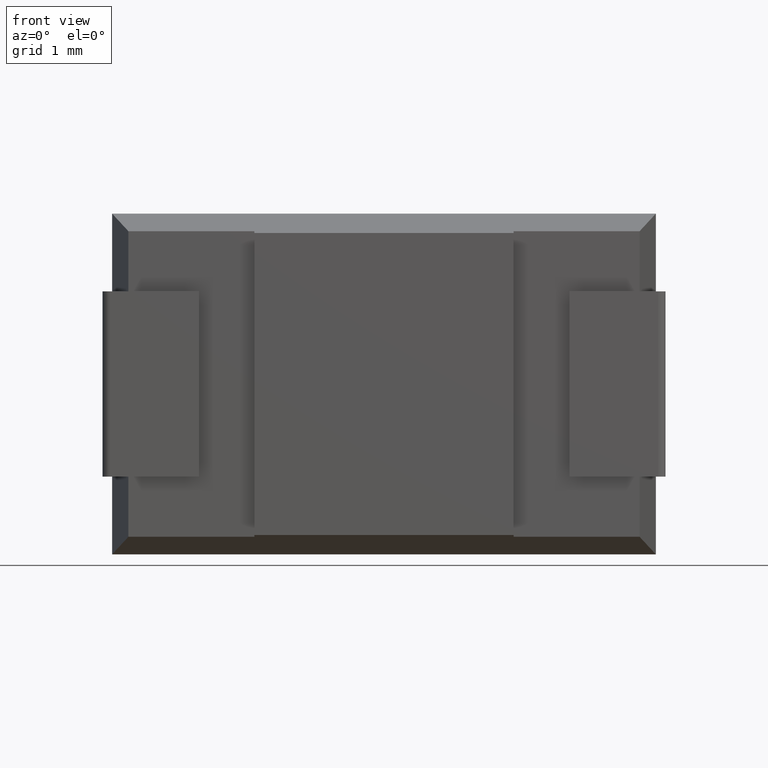
[diagram: clean part render]
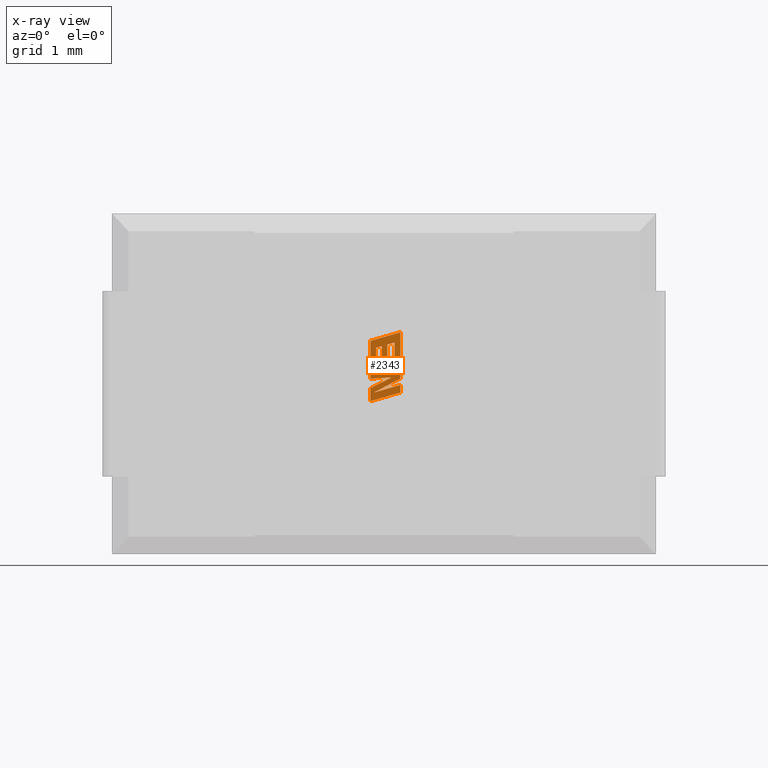
[diagram: x-ray — body ghosted, one internal face saturated and labeled with its STEP entity id]
A machine part, front view, then the same camera in x-ray: the body is ghosted and one INTERNAL B-rep face — a face not visible from any outside direction — is saturated and labeled: STEP entity #2343.
In plain terms, the highlighted planar face has unit normal (0, -1, 0).
Its self-contained STEP definition (entity closure, byte-faithful):
#6 = EDGE_CURVE ( 'NONE', #453, #1820, #2575, .T. ) ;
#65 = CARTESIAN_POINT ( 'NONE',  ( 3.813645201573502952, 4.299999999999999822, -1.739518890328926704 ) ) ;
#77 = LINE ( 'NONE', #2746, #3170 ) ;
#116 = DIRECTION ( 'NONE',  ( -0.9611638845407373122, 0.000000000000000000, -0.2759782365596246678 ) ) ;
#183 = VERTEX_POINT ( 'NONE', #1805 ) ;
#210 = LINE ( 'NONE', #2001, #3717 ) ;
#232 = EDGE_LOOP ( 'NONE', ( #316, #2548, #3337, #493, #2160, #2487, #1313, #1969, #3007, #1887, #494, #2509, #397, #1407, #1789, #3049, #1399, #1050, #2963, #1694, #3016, #686, #283 ) ) ;
#252 = VERTEX_POINT ( 'NONE', #3219 ) ;
#257 = EDGE_CURVE ( 'NONE', #258, #1262, #3804, .T. ) ;
#258 = VERTEX_POINT ( 'NONE', #2652 ) ;
#283 = ORIENTED_EDGE ( 'NONE', *, *, #2168, .F. ) ;
#316 = ORIENTED_EDGE ( 'NONE', *, *, #3020, .F. ) ;
#348 = VERTEX_POINT ( 'NONE', #1433 ) ;
#351 = FACE_OUTER_BOUND ( 'NONE', #232, .T. ) ;
#375 = LINE ( 'NONE', #678, #2811 ) ;
#380 = LINE ( 'NONE', #848, #1875 ) ;
#397 = ORIENTED_EDGE ( 'NONE', *, *, #2608, .F. ) ;
#399 = DIRECTION ( 'NONE',  ( 0.9610029908221288109, 0.000000000000000000, 0.2765379750249924995 ) ) ;
#408 = VERTEX_POINT ( 'NONE', #1008 ) ;
#439 = LINE ( 'NONE', #2809, #3740 ) ;
#450 = EDGE_CURVE ( 'NONE', #252, #3300, #1406, .T. ) ;
#453 = VERTEX_POINT ( 'NONE', #1046 ) ;
#459 = LINE ( 'NONE', #1618, #1266 ) ;
#493 = ORIENTED_EDGE ( 'NONE', *, *, #3226, .F. ) ;
#494 = ORIENTED_EDGE ( 'NONE', *, *, #3787, .F. ) ;
#497 = CARTESIAN_POINT ( 'NONE',  ( 3.713426764250093992, 4.299999999999999822, -1.941120525381216266 ) ) ;
#516 = LINE ( 'NONE', #2878, #2426 ) ;
#529 = VERTEX_POINT ( 'NONE', #3431 ) ;
#560 = CARTESIAN_POINT ( 'NONE',  ( 3.563882562895016815, 4.299999999999999822, -1.811165141901949882 ) ) ;
#591 = DIRECTION ( 'NONE',  ( 0.9984327301129910515, 0.000000000000000000, 0.05596501978127984417 ) ) ;
#614 = EDGE_CURVE ( 'NONE', #1262, #2731, #2436, .T. ) ;
#632 = VECTOR ( 'NONE', #399, 1000.000000000000114 ) ;
#644 = DIRECTION ( 'NONE',  ( -0.9619530280415754531, 0.000000000000000000, -0.2732148821745332135 ) ) ;
#669 = CARTESIAN_POINT ( 'NONE',  ( 3.890359999999998930, 4.299999999999999822, -2.227607446257737323 ) ) ;
#678 = CARTESIAN_POINT ( 'NONE',  ( 3.487129756498003275, 4.299999999999999822, -2.016680371912930259 ) ) ;
#686 = ORIENTED_EDGE ( 'NONE', *, *, #2297, .F. ) ;
#730 = EDGE_CURVE ( 'NONE', #3300, #2599, #210, .T. ) ;
#732 = VECTOR ( 'NONE', #3232, 1000.000000000000114 ) ;
#745 = VECTOR ( 'NONE', #1469, 1000.000000000000000 ) ;
#799 = CARTESIAN_POINT ( 'NONE',  ( 3.713426764250093992, 4.299999999999999822, -1.768073911191687886 ) ) ;
#828 = EDGE_CURVE ( 'NONE', #979, #1463, #1729, .T. ) ;
#848 = CARTESIAN_POINT ( 'NONE',  ( 3.713426764250093992, 4.299999999999999822, -1.941120525381216266 ) ) ;
#854 = EDGE_CURVE ( 'NONE', #1463, #3110, #2567, .T. ) ;
#889 = LINE ( 'NONE', #560, #1622 ) ;
#953 = VECTOR ( 'NONE', #1637, 1000.000000000000000 ) ;
#958 = LINE ( 'NONE', #669, #2559 ) ;
#979 = VERTEX_POINT ( 'NONE', #3607 ) ;
#982 = DIRECTION ( 'NONE',  ( 0.000000000000000000, 0.000000000000000000, -1.000000000000000000 ) ) ;
#1008 = CARTESIAN_POINT ( 'NONE',  ( 3.890359999999998486, 4.299999999999999822, -2.314444625629878516 ) ) ;
#1046 = CARTESIAN_POINT ( 'NONE',  ( 3.890359999999998042, 4.299999999999999822, -2.416911663565799451 ) ) ;
#1050 = ORIENTED_EDGE ( 'NONE', *, *, #1450, .F. ) ;
#1052 = CARTESIAN_POINT ( 'NONE',  ( 3.813645201573502952, 4.299999999999999822, -1.963047446509654570 ) ) ;
#1186 = CARTESIAN_POINT ( 'NONE',  ( 3.487129756498003275, 4.299999999999999822, -2.355989289457152136 ) ) ;
#1195 = VECTOR ( 'NONE', #591, 1000.000000000000114 ) ;
#1223 = VECTOR ( 'NONE', #644, 1000.000000000000000 ) ;
#1262 = VERTEX_POINT ( 'NONE', #1745 ) ;
#1266 = VECTOR ( 'NONE', #116, 1000.000000000000114 ) ;
#1275 = CARTESIAN_POINT ( 'NONE',  ( 3.890359999999999818, 4.299999999999999822, -1.602753949383808996 ) ) ;
#1309 = VECTOR ( 'NONE', #2894, 1000.000000000000114 ) ;
#1313 = ORIENTED_EDGE ( 'NONE', *, *, #257, .F. ) ;
#1335 = CARTESIAN_POINT ( 'NONE',  ( 3.890359999999998930, 4.299999999999999822, -2.120109869438231875 ) ) ;
#1353 = EDGE_CURVE ( 'NONE', #3001, #1541, #1877, .T. ) ;
#1357 = LINE ( 'NONE', #3733, #3601 ) ;
#1399 = ORIENTED_EDGE ( 'NONE', *, *, #3158, .F. ) ;
#1402 = EDGE_CURVE ( 'NONE', #348, #2592, #2465, .T. ) ;
#1406 = LINE ( 'NONE', #2209, #2176 ) ;
#1407 = ORIENTED_EDGE ( 'NONE', *, *, #730, .F. ) ;
#1433 = CARTESIAN_POINT ( 'NONE',  ( 3.563882562895016815, 4.299999999999999822, -1.994880961395955943 ) ) ;
#1450 = EDGE_CURVE ( 'NONE', #1788, #2845, #2112, .T. ) ;
#1463 = VERTEX_POINT ( 'NONE', #3295 ) ;
#1469 = DIRECTION ( 'NONE',  ( 0.000000000000000000, 0.000000000000000000, 1.000000000000000000 ) ) ;
#1541 = VERTEX_POINT ( 'NONE', #3388 ) ;
#1596 = VERTEX_POINT ( 'NONE', #2208 ) ;
#1603 = CARTESIAN_POINT ( 'NONE',  ( 3.890359999999998930, 4.299999999999999822, -2.227607446257737323 ) ) ;
#1604 = CARTESIAN_POINT ( 'NONE',  ( 0.8027141145763105889, 4.299999999999999822, -0.4610882656574494809 ) ) ;
#1618 = CARTESIAN_POINT ( 'NONE',  ( 3.890359999999999374, 4.299999999999999822, -2.037156859498951089 ) ) ;
#1622 = VECTOR ( 'NONE', #3503, 1000.000000000000000 ) ;
#1637 = DIRECTION ( 'NONE',  ( 0.000000000000000000, 0.000000000000000000, -1.000000000000000000 ) ) ;
#1656 = DIRECTION ( 'NONE',  ( -0.9601763114327601656, 0.000000000000000000, -0.2793947940878268588 ) ) ;
#1694 = ORIENTED_EDGE ( 'NONE', *, *, #854, .F. ) ;
#1709 = DIRECTION ( 'NONE',  ( 0.9611542233437042615, 0.000000000000000000, 0.2760118818974294230 ) ) ;
#1729 = LINE ( 'NONE', #1767, #745 ) ;
#1745 = CARTESIAN_POINT ( 'NONE',  ( 3.890359999999998930, 4.299999999999999822, -2.120109869438231875 ) ) ;
#1767 = CARTESIAN_POINT ( 'NONE',  ( 3.487129756498003275, 4.299999999999999822, -2.228621656643089644 ) ) ;
#1778 = CARTESIAN_POINT ( 'NONE',  ( 3.775202623328906437, 4.299999999999999822, -2.213114574515231858 ) ) ;
#1788 = VERTEX_POINT ( 'NONE', #65 ) ;
#1789 = ORIENTED_EDGE ( 'NONE', *, *, #450, .F. ) ;
#1805 = CARTESIAN_POINT ( 'NONE',  ( 3.529645963386979890, 4.299999999999999822, -2.418029833554179220 ) ) ;
#1820 = VERTEX_POINT ( 'NONE', #2262 ) ;
#1842 = DIRECTION ( 'NONE',  ( -0.8843386665635059041, 0.000000000000000000, -0.4668459304960046463 ) ) ;
#1875 = VECTOR ( 'NONE', #3495, 1000.000000000000227 ) ;
#1877 = LINE ( 'NONE', #2483, #2392 ) ;
#1887 = ORIENTED_EDGE ( 'NONE', *, *, #2635, .F. ) ;
#1899 = LINE ( 'NONE', #2741, #2745 ) ;
#1969 = ORIENTED_EDGE ( 'NONE', *, *, #3066, .F. ) ;
#2001 = CARTESIAN_POINT ( 'NONE',  ( 3.638883324430856270, 4.299999999999999822, -1.789341210113351899 ) ) ;
#2070 = LINE ( 'NONE', #1186, #732 ) ;
#2103 = CARTESIAN_POINT ( 'NONE',  ( 3.487129756498003275, 4.299999999999999822, -1.718787381196005715 ) ) ;
#2112 = LINE ( 'NONE', #2759, #2203 ) ;
#2144 = DIRECTION ( 'NONE',  ( 0.000000000000000000, -1.000000000000000000, 0.000000000000000000 ) ) ;
#2160 = ORIENTED_EDGE ( 'NONE', *, *, #3105, .F. ) ;
#2168 = EDGE_CURVE ( 'NONE', #529, #1596, #2070, .T. ) ;
#2171 = LINE ( 'NONE', #3355, #632 ) ;
#2176 = VECTOR ( 'NONE', #3136, 1000.000000000000000 ) ;
#2194 = DIRECTION ( 'NONE',  ( 0.000000000000000000, 0.000000000000000000, 1.000000000000000000 ) ) ;
#2203 = VECTOR ( 'NONE', #3327, 1000.000000000000000 ) ;
#2208 = CARTESIAN_POINT ( 'NONE',  ( 3.775202623328906437, 4.299999999999999822, -2.213114574515231858 ) ) ;
#2209 = CARTESIAN_POINT ( 'NONE',  ( 3.638883324430856270, 4.299999999999999822, -1.962412345574536143 ) ) ;
#2262 = CARTESIAN_POINT ( 'NONE',  ( 3.487129756498003275, 4.299999999999999822, -2.532843331776714724 ) ) ;
#2281 = CARTESIAN_POINT ( 'NONE',  ( 3.890359999999998042, 4.299999999999999822, -2.416911663565799451 ) ) ;
#2297 = EDGE_CURVE ( 'NONE', #1596, #979, #3212, .T. ) ;
#2306 = CARTESIAN_POINT ( 'NONE',  ( 3.487129756498003275, 4.299999999999999822, -2.016680371912930259 ) ) ;
#2343 = ADVANCED_FACE ( 'NONE', ( #351 ), #2776, .T. ) ;
#2392 = VECTOR ( 'NONE', #3586, 1000.000000000000000 ) ;
#2426 = VECTOR ( 'NONE', #2533, 1000.000000000000000 ) ;
#2436 = LINE ( 'NONE', #1335, #953 ) ;
#2447 = CARTESIAN_POINT ( 'NONE',  ( 3.563882562895016815, 4.299999999999999822, -1.994880961395955943 ) ) ;
#2465 = LINE ( 'NONE', #2447, #1223 ) ;
#2483 = CARTESIAN_POINT ( 'NONE',  ( 3.890359999999999818, 4.299999999999999822, -1.965383097314881145 ) ) ;
#2487 = ORIENTED_EDGE ( 'NONE', *, *, #614, .F. ) ;
#2509 = ORIENTED_EDGE ( 'NONE', *, *, #1402, .F. ) ;
#2533 = DIRECTION ( 'NONE',  ( 0.000000000000000000, 0.000000000000000000, -1.000000000000000000 ) ) ;
#2548 = ORIENTED_EDGE ( 'NONE', *, *, #6, .F. ) ;
#2559 = VECTOR ( 'NONE', #1842, 1000.000000000000000 ) ;
#2567 = LINE ( 'NONE', #3131, #3649 ) ;
#2575 = LINE ( 'NONE', #2281, #1309 ) ;
#2592 = VERTEX_POINT ( 'NONE', #2306 ) ;
#2599 = VERTEX_POINT ( 'NONE', #2902 ) ;
#2608 = EDGE_CURVE ( 'NONE', #2599, #348, #889, .T. ) ;
#2635 = EDGE_CURVE ( 'NONE', #2978, #3001, #2171, .T. ) ;
#2652 = CARTESIAN_POINT ( 'NONE',  ( 3.531374713038970992, 4.299999999999999822, -2.140232024972624991 ) ) ;
#2668 = CARTESIAN_POINT ( 'NONE',  ( 3.531374713038970992, 4.299999999999999822, -2.140232024972624991 ) ) ;
#2671 = CARTESIAN_POINT ( 'NONE',  ( 3.638883324430856270, 4.299999999999999822, -1.789341210113351899 ) ) ;
#2700 = DIRECTION ( 'NONE',  ( -0.9985542843760926157, 0.000000000000000000, -0.05375259206912379184 ) ) ;
#2731 = VERTEX_POINT ( 'NONE', #1603 ) ;
#2741 = CARTESIAN_POINT ( 'NONE',  ( 3.890359999999998486, 4.299999999999999822, -2.314444625629878516 ) ) ;
#2745 = VECTOR ( 'NONE', #3082, 1000.000000000000000 ) ;
#2746 = CARTESIAN_POINT ( 'NONE',  ( 3.813645201573502952, 4.299999999999999822, -1.963047446509654570 ) ) ;
#2759 = CARTESIAN_POINT ( 'NONE',  ( 3.813645201573502952, 4.299999999999999822, -1.739518890328926704 ) ) ;
#2776 = PLANE ( 'NONE',  #3574 ) ;
#2807 = DIRECTION ( 'NONE',  ( 0.000000000000000000, 0.000000000000000000, 1.000000000000000000 ) ) ;
#2809 = CARTESIAN_POINT ( 'NONE',  ( 3.487129756498003275, 4.299999999999999822, -2.532843331776714724 ) ) ;
#2811 = VECTOR ( 'NONE', #3371, 1000.000000000000000 ) ;
#2845 = VERTEX_POINT ( 'NONE', #799 ) ;
#2878 = CARTESIAN_POINT ( 'NONE',  ( 3.713426764250093992, 4.299999999999999822, -1.768073911191687886 ) ) ;
#2894 = DIRECTION ( 'NONE',  ( -0.9610674221107268211, 0.000000000000000000, -0.2763139702538436326 ) ) ;
#2902 = CARTESIAN_POINT ( 'NONE',  ( 3.563882562895016815, 4.299999999999999822, -1.811165141901949882 ) ) ;
#2963 = ORIENTED_EDGE ( 'NONE', *, *, #3497, .F. ) ;
#2978 = VERTEX_POINT ( 'NONE', #2103 ) ;
#3001 = VERTEX_POINT ( 'NONE', #1275 ) ;
#3007 = ORIENTED_EDGE ( 'NONE', *, *, #1353, .F. ) ;
#3016 = ORIENTED_EDGE ( 'NONE', *, *, #828, .F. ) ;
#3020 = EDGE_CURVE ( 'NONE', #1820, #529, #439, .T. ) ;
#3049 = ORIENTED_EDGE ( 'NONE', *, *, #3109, .F. ) ;
#3066 = EDGE_CURVE ( 'NONE', #1541, #258, #459, .T. ) ;
#3082 = DIRECTION ( 'NONE',  ( -4.232393926185404138E-15, 0.000000000000000000, -1.000000000000000000 ) ) ;
#3105 = EDGE_CURVE ( 'NONE', #2731, #183, #958, .T. ) ;
#3109 = EDGE_CURVE ( 'NONE', #3179, #252, #380, .T. ) ;
#3110 = VERTEX_POINT ( 'NONE', #1052 ) ;
#3131 = CARTESIAN_POINT ( 'NONE',  ( 3.487129756498003275, 4.299999999999999822, -2.056900161709398489 ) ) ;
#3136 = DIRECTION ( 'NONE',  ( 0.000000000000000000, 0.000000000000000000, 1.000000000000000000 ) ) ;
#3158 = EDGE_CURVE ( 'NONE', #2845, #3179, #516, .T. ) ;
#3170 = VECTOR ( 'NONE', #2807, 1000.000000000000000 ) ;
#3179 = VERTEX_POINT ( 'NONE', #497 ) ;
#3212 = LINE ( 'NONE', #1778, #3448 ) ;
#3219 = CARTESIAN_POINT ( 'NONE',  ( 3.638883324430856270, 4.299999999999999822, -1.962412345574536143 ) ) ;
#3226 = EDGE_CURVE ( 'NONE', #183, #408, #1357, .T. ) ;
#3232 = DIRECTION ( 'NONE',  ( 0.8958676361827050405, 0.000000000000000000, 0.4443210308329018643 ) ) ;
#3295 = CARTESIAN_POINT ( 'NONE',  ( 3.487129756498003275, 4.299999999999999822, -2.056900161709398489 ) ) ;
#3300 = VERTEX_POINT ( 'NONE', #2671 ) ;
#3327 = DIRECTION ( 'NONE',  ( -0.9617234872620606945, 0.000000000000000000, -0.2740217765954032214 ) ) ;
#3337 = ORIENTED_EDGE ( 'NONE', *, *, #3762, .F. ) ;
#3355 = CARTESIAN_POINT ( 'NONE',  ( 3.487129756498003275, 4.299999999999999822, -1.718787381196005715 ) ) ;
#3371 = DIRECTION ( 'NONE',  ( 0.000000000000000000, 0.000000000000000000, 1.000000000000000000 ) ) ;
#3388 = CARTESIAN_POINT ( 'NONE',  ( 3.890359999999999374, 4.299999999999999822, -2.037156859498951089 ) ) ;
#3431 = CARTESIAN_POINT ( 'NONE',  ( 3.487129756498003275, 4.299999999999999822, -2.355989289457152136 ) ) ;
#3448 = VECTOR ( 'NONE', #2700, 1000.000000000000000 ) ;
#3495 = DIRECTION ( 'NONE',  ( -0.9615454294334491170, 0.000000000000000000, -0.2746459304916855082 ) ) ;
#3497 = EDGE_CURVE ( 'NONE', #3110, #1788, #77, .T. ) ;
#3503 = DIRECTION ( 'NONE',  ( 0.000000000000000000, 0.000000000000000000, -1.000000000000000000 ) ) ;
#3574 = AXIS2_PLACEMENT_3D ( 'NONE', #1604, #2144, #982 ) ;
#3586 = DIRECTION ( 'NONE',  ( -6.042331567934130495E-15, 0.000000000000000000, -1.000000000000000000 ) ) ;
#3601 = VECTOR ( 'NONE', #1709, 1000.000000000000227 ) ;
#3607 = CARTESIAN_POINT ( 'NONE',  ( 3.487129756498003275, 4.299999999999999822, -2.228621656643089644 ) ) ;
#3649 = VECTOR ( 'NONE', #3700, 1000.000000000000227 ) ;
#3700 = DIRECTION ( 'NONE',  ( 0.9610853065513911275, 0.000000000000000000, 0.2762517575166146822 ) ) ;
#3717 = VECTOR ( 'NONE', #1656, 1000.000000000000000 ) ;
#3733 = CARTESIAN_POINT ( 'NONE',  ( 3.529645963386979890, 4.299999999999999822, -2.418029833554179220 ) ) ;
#3740 = VECTOR ( 'NONE', #2194, 1000.000000000000000 ) ;
#3762 = EDGE_CURVE ( 'NONE', #408, #453, #1899, .T. ) ;
#3787 = EDGE_CURVE ( 'NONE', #2592, #2978, #375, .T. ) ;
#3804 = LINE ( 'NONE', #2668, #1195 ) ;